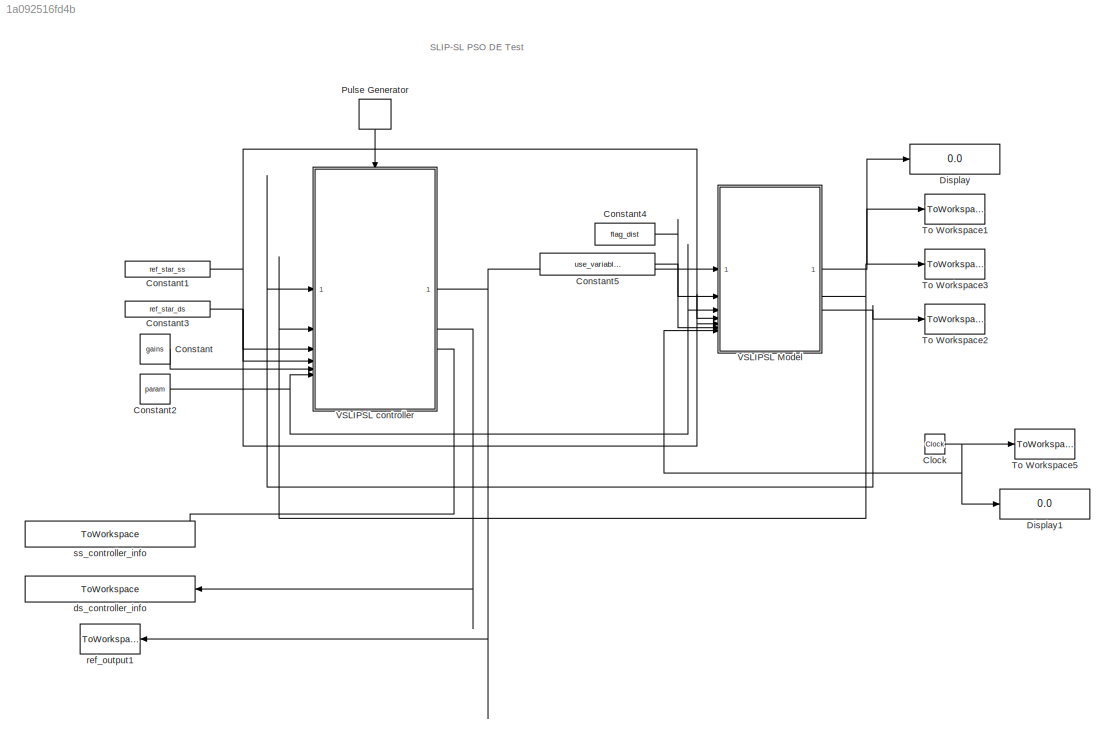
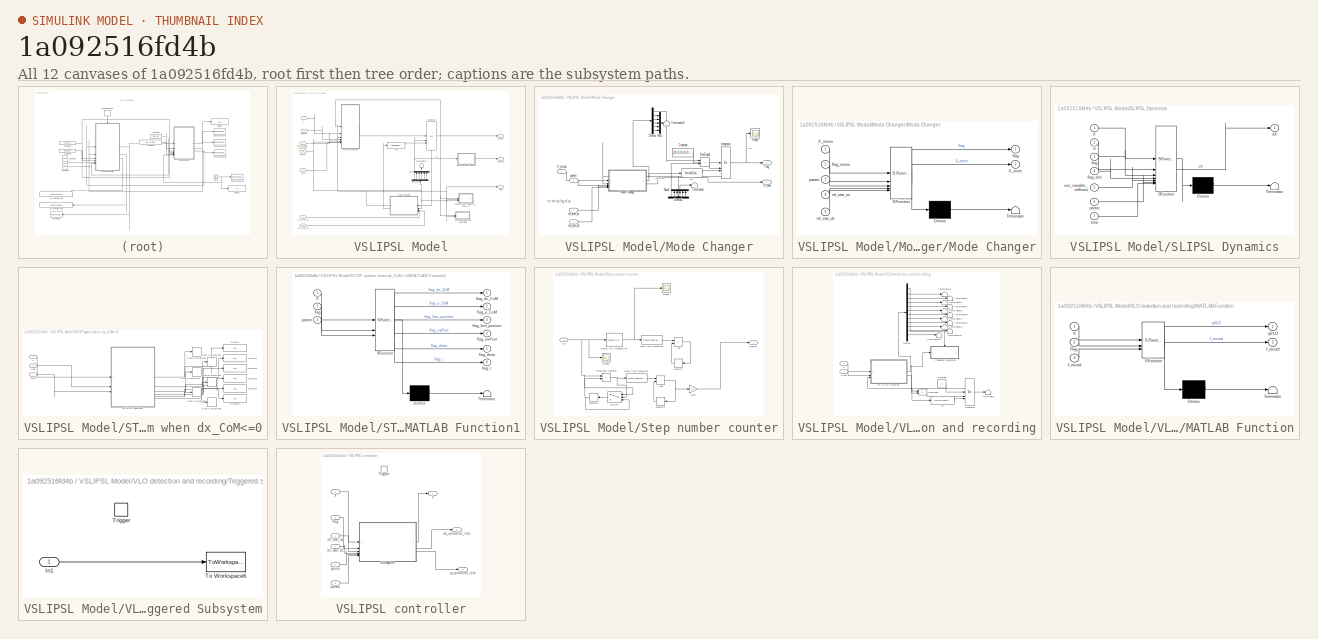
[diagram: thumbnail index - all 12 canvases of the model, root first then tree order]
MODEL slx_1a092516fd4b
KIND model
CONFIG AbsTol = auto
CONFIG EnableMultiTasking = off
CONFIG FixedStep = 1e-3
CONFIG MaxStep = auto
CONFIG MinStep = auto
CONFIG RelTol = 1e-3
CONFIG SampleTimeConstraint = Unconstrained
CONFIG SolverName = ode4
CONFIG StartTime = 0.0
CONFIG StopTime = Tf
BLOCK [Clock] Clock
BLOCK [Constant] Constant
  Value = gains
BLOCK [Constant] Constant1
  Value = ref_star_ss
BLOCK [Constant] Constant2
  Value = param
BLOCK [Constant] Constant3
  Value = ref_star_ds
BLOCK [Constant] Constant4
  Value = flag_dist
BLOCK [Constant] Constant5
  Value = use_variable_stiffness
BLOCK [Display] Display
  Decimation = 1
BLOCK [Display] Display1
  Decimation = 1
BLOCK [DiscretePulseGenerator] Pulse Generator
  NameLocation = left
  Period = 1e-3
  PulseType = Time based
  PulseWidth = 5
BLOCK [ToWorkspace] To Workspace1
  FixptAsFi = on
  MaxDataPoints = inf
  SampleTime = sample_time
  VariableName = step_no
BLOCK [ToWorkspace] To Workspace2
  FixptAsFi = on
  MaxDataPoints = inf
  SampleTime = sample_time
  VariableName = simout
BLOCK [ToWorkspace] To Workspace3
  FixptAsFi = on
  MaxDataPoints = inf
  SampleTime = sample_time
  VariableName = flag
BLOCK [ToWorkspace] To Workspace5
  FixptAsFi = on
  MaxDataPoints = inf
  SampleTime = sample_time
  VariableName = time
BLOCK [SubSystem] VSLIPSL Model
BLOCK [Demux] VSLIPSL Model/Demux1
  NameLocation = right
  Outputs = 6
BLOCK [InitialCondition] VSLIPSL Model/IC1
  Value = init_cond
BLOCK [Integrator] VSLIPSL Model/Integrator
  ExternalReset = either
  InitialConditionSource = external
  NameLocation = top
  ShowStatePort = on
BLOCK [SubSystem] VSLIPSL Model/Mode Changer
  NameLocation = top
BLOCK [Constant] VSLIPSL Model/Mode Changer/Constant
  Value = [0;0;0;0;0;0]
BLOCK [Demux] VSLIPSL Model/Mode Changer/Demux
  Outputs = 6
BLOCK [Demux] VSLIPSL Model/Mode Changer/Demux1
  NameLocation = right
  Outputs = 6
BLOCK [InitialCondition] VSLIPSL Model/Mode Changer/IC
  Value = init_flag
BLOCK [Integrator] VSLIPSL Model/Mode Changer/Integrator
  ExternalReset = rising
  InitialConditionSource = external
  NameLocation = top
  ShowStatePort = on
BLOCK [SubSystem] VSLIPSL Model/Mode Changer/Mode Changer
  ErrorFcn = Stateflow.Translate.translate
  PermitHierarchicalResolution = ExplicitOnly
  SFBlockType = MATLAB Function
  TreatAsAtomicUnit = on
BLOCK [Demux] VSLIPSL Model/Mode Changer/Mode Changer/ Demux 
  Outputs = 1
BLOCK [S-Function] VSLIPSL Model/Mode Changer/Mode Changer/ SFunction 
  EnableBusSupport = on
  FunctionName = sf_sfun
  PortCounts = [5 3]
  SFcnIsStateOwnerBlock = off
  SFunctionDeploymentMode = off
  Tag = Stateflow S-Function 2
BLOCK [Terminator] VSLIPSL Model/Mode Changer/Mode Changer/ Terminator 
BLOCK [Inport] VSLIPSL Model/Mode Changer/Mode Changer/X_minus
BLOCK [Outport] VSLIPSL Model/Mode Changer/Mode Changer/X_reset
  Port = 2
  VectorParamsAs1DForOutWhenUnconnected = off
BLOCK [Outport] VSLIPSL Model/Mode Changer/Mode Changer/flag
  VectorParamsAs1DForOutWhenUnconnected = off
BLOCK [Inport] VSLIPSL Model/Mode Changer/Mode Changer/flag_minus
  Port = 2
BLOCK [Inport] VSLIPSL Model/Mode Changer/Mode Changer/param
  Port = 3
BLOCK [Inport] VSLIPSL Model/Mode Changer/Mode Changer/ref_star_ds
  Port = 5
BLOCK [Inport] VSLIPSL Model/Mode Changer/Mode Changer/ref_star_ss
  Port = 4
BLOCK [Mux] VSLIPSL Model/Mode Changer/Mux
  DisplayOption = bar
  Inputs = 5
BLOCK [Mux] VSLIPSL Model/Mode Changer/Mux1
  DisplayOption = bar
  Inputs = 5
  NameLocation = right
BLOCK [RelationalOperator] VSLIPSL Model/Mode Changer/NotEqual
  InputSameDT = off
  Operator = ~=
  OutDataTypeStr = boolean
  RndMeth = Simplest
BLOCK [Scope] VSLIPSL Model/Mode Changer/Scope
  Floating = off
  NumInputPorts = 1
  ScopeSpecificationString = Simulink.scopes.TimeScopeBlockCfg('CurrentConfiguration', extmgr.ConfigurationSet(extmgr.Configuration('Core','General UI',true),extmgr.Configuration('Core','Source UI',true),extmgr.Configuration('Sources','WiredSimulink',true,'DataLoggingVariableName','ScopeData1'),extmgr.Configuration('Visuals','Time Domain',true,'SerializedDisplays',{struct('MinYLimReal','-1.25','MaxYLimReal','1.25','YLabelReal...<+1419ch>
BLOCK [Terminator] VSLIPSL Model/Mode Changer/Terminator
BLOCK [Terminator] VSLIPSL Model/Mode Changer/Terminator2
BLOCK [Inport] VSLIPSL Model/Mode Changer/X_minus
BLOCK [Outport] VSLIPSL Model/Mode Changer/X_reset
  Port = 2
  VectorParamsAs1DForOutWhenUnconnected = off
BLOCK [Outport] VSLIPSL Model/Mode Changer/flag
  VectorParamsAs1DForOutWhenUnconnected = off
BLOCK [Inport] VSLIPSL Model/Mode Changer/param 
  Port = 2
BLOCK [Inport] VSLIPSL Model/Mode Changer/ref_star_ds
  Port = 4
BLOCK [Inport] VSLIPSL Model/Mode Changer/ref_star_ss
  Port = 3
BLOCK [Mux] VSLIPSL Model/Mux
  DisplayOption = bar
  Inputs = 5
  NameLocation = right
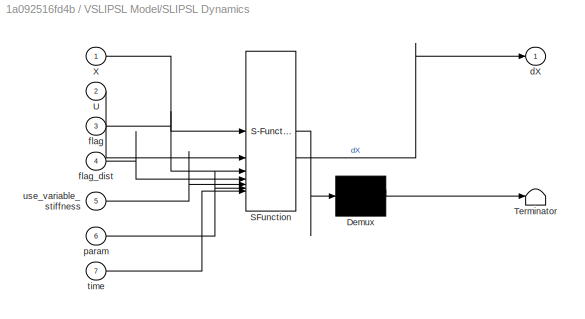
BLOCK [SubSystem] VSLIPSL Model/SLIPSL Dynamics
  ErrorFcn = Stateflow.Translate.translate
  PermitHierarchicalResolution = ExplicitOnly
  SFBlockType = MATLAB Function
  TreatAsAtomicUnit = on
BLOCK [Demux] VSLIPSL Model/SLIPSL Dynamics/ Demux 
  Outputs = 1
BLOCK [S-Function] VSLIPSL Model/SLIPSL Dynamics/ SFunction 
  EnableBusSupport = on
  FunctionName = sf_sfun
  PortCounts = [7 2]
  SFcnIsStateOwnerBlock = off
  SFunctionDeploymentMode = off
  Tag = Stateflow S-Function 7
BLOCK [Terminator] VSLIPSL Model/SLIPSL Dynamics/ Terminator 
BLOCK [Inport] VSLIPSL Model/SLIPSL Dynamics/U
  Port = 2
BLOCK [Inport] VSLIPSL Model/SLIPSL Dynamics/X
BLOCK [Outport] VSLIPSL Model/SLIPSL Dynamics/dX
  VectorParamsAs1DForOutWhenUnconnected = off
BLOCK [Inport] VSLIPSL Model/SLIPSL Dynamics/flag
  Port = 3
BLOCK [Inport] VSLIPSL Model/SLIPSL Dynamics/flag_dist
  Port = 4
BLOCK [Inport] VSLIPSL Model/SLIPSL Dynamics/param
  Port = 6
BLOCK [Inport] VSLIPSL Model/SLIPSL Dynamics/time
  Port = 7
BLOCK [Inport] VSLIPSL Model/SLIPSL Dynamics/use_variable_stiffness
  Port = 5
BLOCK [SubSystem] VSLIPSL Model/STOP system when dx_CoM<=0
BLOCK [Display] VSLIPSL Model/STOP system when dx_CoM<=0/Display
  Decimation = 1
BLOCK [Display] VSLIPSL Model/STOP system when dx_CoM<=0/Display1
  Decimation = 1
BLOCK [Display] VSLIPSL Model/STOP system when dx_CoM<=0/Display2
  Decimation = 1
BLOCK [Display] VSLIPSL Model/STOP system when dx_CoM<=0/Display3
  Decimation = 1
BLOCK [Display] VSLIPSL Model/STOP system when dx_CoM<=0/Display4
  Decimation = 1
BLOCK [Display] VSLIPSL Model/STOP system when dx_CoM<=0/Display5
  Decimation = 1
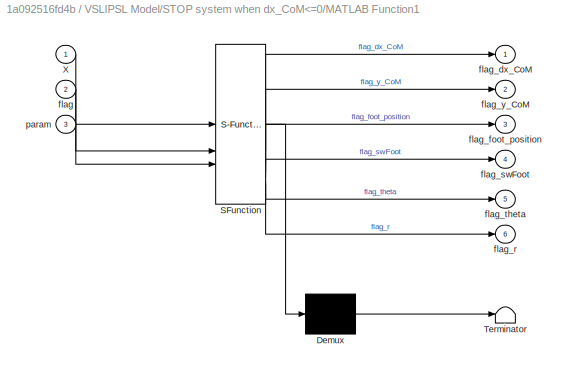
BLOCK [SubSystem] VSLIPSL Model/STOP system when dx_CoM<=0/MATLAB Function1
  ErrorFcn = Stateflow.Translate.translate
  PermitHierarchicalResolution = ExplicitOnly
  SFBlockType = MATLAB Function
  TreatAsAtomicUnit = on
BLOCK [Demux] VSLIPSL Model/STOP system when dx_CoM<=0/MATLAB Function1/ Demux 
  Outputs = 1
BLOCK [S-Function] VSLIPSL Model/STOP system when dx_CoM<=0/MATLAB Function1/ SFunction 
  EnableBusSupport = on
  FunctionName = sf_sfun
  PortCounts = [3 7]
  SFcnIsStateOwnerBlock = off
  SFunctionDeploymentMode = off
  Tag = Stateflow S-Function 8
BLOCK [Terminator] VSLIPSL Model/STOP system when dx_CoM<=0/MATLAB Function1/ Terminator 
BLOCK [Inport] VSLIPSL Model/STOP system when dx_CoM<=0/MATLAB Function1/X
BLOCK [Inport] VSLIPSL Model/STOP system when dx_CoM<=0/MATLAB Function1/flag
  Port = 2
BLOCK [Outport] VSLIPSL Model/STOP system when dx_CoM<=0/MATLAB Function1/flag_dx_CoM
BLOCK [Outport] VSLIPSL Model/STOP system when dx_CoM<=0/MATLAB Function1/flag_foot_position
  Port = 3
BLOCK [Outport] VSLIPSL Model/STOP system when dx_CoM<=0/MATLAB Function1/flag_r
  Port = 6
BLOCK [Outport] VSLIPSL Model/STOP system when dx_CoM<=0/MATLAB Function1/flag_swFoot
  Port = 4
BLOCK [Outport] VSLIPSL Model/STOP system when dx_CoM<=0/MATLAB Function1/flag_theta
  Port = 5
BLOCK [Outport] VSLIPSL Model/STOP system when dx_CoM<=0/MATLAB Function1/flag_y_CoM
  Port = 2
BLOCK [Inport] VSLIPSL Model/STOP system when dx_CoM<=0/MATLAB Function1/param
  Port = 3
BLOCK [Stop] VSLIPSL Model/STOP system when dx_CoM<=0/Stop Simulation1
BLOCK [Stop] VSLIPSL Model/STOP system when dx_CoM<=0/Stop Simulation2
BLOCK [Stop] VSLIPSL Model/STOP system when dx_CoM<=0/Stop Simulation3
BLOCK [Stop] VSLIPSL Model/STOP system when dx_CoM<=0/Stop Simulation4
BLOCK [Stop] VSLIPSL Model/STOP system when dx_CoM<=0/Stop Simulation5
BLOCK [Stop] VSLIPSL Model/STOP system when dx_CoM<=0/Stop Simulation6
BLOCK [Inport] VSLIPSL Model/STOP system when dx_CoM<=0/X
BLOCK [Inport] VSLIPSL Model/STOP system when dx_CoM<=0/flag
  Port = 2
BLOCK [Inport] VSLIPSL Model/STOP system when dx_CoM<=0/param
  Port = 3
BLOCK [SubSystem] VSLIPSL Model/Step number counter
BLOCK [Sum] VSLIPSL Model/Step number counter/Add
  IconShape = rectangular
BLOCK [Sum] VSLIPSL Model/Step number counter/Add1
  IconShape = rectangular
BLOCK [DataTypeConversion] VSLIPSL Model/Step number counter/Data Type Conversion
  OutDataTypeStr = double
  RndMeth = Floor
  SaturateOnIntegerOverflow = off
BLOCK [DataTypeConversion] VSLIPSL Model/Step number counter/Data Type Conversion1
  OutDataTypeStr = double
  RndMeth = Floor
  SaturateOnIntegerOverflow = off
BLOCK [Reference] VSLIPSL Model/Step number counter/Detect Fall Nonpositive  REF=simulink/Logic and Bit
Operations/Detect Fall
Nonpositive
  SourceBlock = simulink/Logic and Bit\nOperations/Detect Fall\nNonpositive
  SourceType = Detect Fall Nonpositive
BLOCK [Gain] VSLIPSL Model/Step number counter/Gain
  Gain = 1/2
BLOCK [Memory] VSLIPSL Model/Step number counter/Memory
  InheritSampleTime = on
  NameLocation = top
BLOCK [Memory] VSLIPSL Model/Step number counter/Memory1
  InheritSampleTime = on
  InitialCondition = 1
  NameLocation = top
BLOCK [Memory] VSLIPSL Model/Step number counter/Memory2
  InheritSampleTime = on
  NameLocation = top
BLOCK [RelationalOperator] VSLIPSL Model/Step number counter/Relational Operator
  InputSameDT = off
  Operator = ~=
  OutDataTypeStr = boolean
  RndMeth = Simplest
BLOCK [Scope] VSLIPSL Model/Step number counter/Scope
  Floating = off
  NumInputPorts = 1
  ScopeSpecificationString = Simulink.scopes.TimeScopeBlockCfg('CurrentConfiguration', extmgr.ConfigurationSet(extmgr.Configuration('Core','General UI',true),extmgr.Configuration('Core','Source UI',true),extmgr.Configuration('Sources','WiredSimulink',true),extmgr.Configuration('Visuals','Time Domain',true,'SerializedDisplays',{struct('MinYLimReal','-0.125','MaxYLimReal','1.125','YLabelReal','','MinYLimMag','0.00000','MaxYLimM...<+1404ch>
BLOCK [Scope] VSLIPSL Model/Step number counter/Scope1
  Floating = off
  NumInputPorts = 1
  ScopeSpecificationString = Simulink.scopes.TimeScopeBlockCfg('CurrentConfiguration', extmgr.ConfigurationSet(extmgr.Configuration('Core','General UI',true),extmgr.Configuration('Core','Source UI',true),extmgr.Configuration('Sources','WiredSimulink',true,'DataLoggingVariableName','ScopeData1'),extmgr.Configuration('Visuals','Time Domain',true,'SerializedDisplays',{struct('MinYLimReal','-1.25','MaxYLimReal','1.25','YLabelReal...<+1416ch>
BLOCK [Switch] VSLIPSL Model/Step number counter/Switch
  Criteria = u2 > Threshold
  InputSameDT = off
  NameLocation = top
  SaturateOnIntegerOverflow = off
BLOCK [Inport] VSLIPSL Model/Step number counter/flg
  SampleTime = sample_time
BLOCK [Outport] VSLIPSL Model/Step number counter/step_no
  VectorParamsAs1DForOutWhenUnconnected = off
BLOCK [Terminator] VSLIPSL Model/Terminator4
  NameLocation = right
BLOCK [Inport] VSLIPSL Model/U
BLOCK [SubSystem] VSLIPSL Model/VLO detection and recording
BLOCK [Constant] VSLIPSL Model/VLO detection and recording/Constant
  Value = 0
BLOCK [Demux] VSLIPSL Model/VLO detection and recording/Demux
  Outputs = 12
BLOCK [Inport] VSLIPSL Model/VLO detection and recording/Flag
  Port = 2
BLOCK [InitialCondition] VSLIPSL Model/VLO detection and recording/IC
  Value = init_f_record
BLOCK [Integrator] VSLIPSL Model/VLO detection and recording/Integrator
  ExternalReset = rising
  InitialConditionSource = external
  NameLocation = top
  ShowStatePort = on
BLOCK [SubSystem] VSLIPSL Model/VLO detection and recording/MATLAB Function
  ErrorFcn = Stateflow.Translate.translate
  PermitHierarchicalResolution = ExplicitOnly
  SFBlockType = MATLAB Function
  TreatAsAtomicUnit = on
BLOCK [Demux] VSLIPSL Model/VLO detection and recording/MATLAB Function/ Demux 
  Outputs = 1
BLOCK [S-Function] VSLIPSL Model/VLO detection and recording/MATLAB Function/ SFunction 
  EnableBusSupport = on
  FunctionName = sf_sfun
  PortCounts = [3 3]
  SFcnIsStateOwnerBlock = off
  SFunctionDeploymentMode = off
  Tag = Stateflow S-Function 9
BLOCK [Terminator] VSLIPSL Model/VLO detection and recording/MATLAB Function/ Terminator 
BLOCK [Inport] VSLIPSL Model/VLO detection and recording/MATLAB Function/Flag
  Port = 2
BLOCK [Inport] VSLIPSL Model/VLO detection and recording/MATLAB Function/X
BLOCK [Outport] VSLIPSL Model/VLO detection and recording/MATLAB Function/f_record
  Port = 2
  VectorParamsAs1DForOutWhenUnconnected = off
BLOCK [Inport] VSLIPSL Model/VLO detection and recording/MATLAB Function/f_record 
  Port = 3
BLOCK [Outport] VSLIPSL Model/VLO detection and recording/MATLAB Function/qVLO
  VectorParamsAs1DForOutWhenUnconnected = off
BLOCK [RelationalOperator] VSLIPSL Model/VLO detection and recording/NotEqual
  InputSameDT = off
  Operator = ~=
  OutDataTypeStr = boolean
  RndMeth = Simplest
BLOCK [Terminator] VSLIPSL Model/VLO detection and recording/Terminator
BLOCK [Terminator] VSLIPSL Model/VLO detection and recording/Terminator1
BLOCK [Terminator] VSLIPSL Model/VLO detection and recording/Terminator10
BLOCK [Terminator] VSLIPSL Model/VLO detection and recording/Terminator11
BLOCK [Terminator] VSLIPSL Model/VLO detection and recording/Terminator2
BLOCK [Terminator] VSLIPSL Model/VLO detection and recording/Terminator3
BLOCK [Terminator] VSLIPSL Model/VLO detection and recording/Terminator4
BLOCK [Terminator] VSLIPSL Model/VLO detection and recording/Terminator5
BLOCK [Terminator] VSLIPSL Model/VLO detection and recording/Terminator6
BLOCK [Terminator] VSLIPSL Model/VLO detection and recording/Terminator7
BLOCK [Terminator] VSLIPSL Model/VLO detection and recording/Terminator8
BLOCK [Terminator] VSLIPSL Model/VLO detection and recording/Terminator9
BLOCK [SubSystem] VSLIPSL Model/VLO detection and recording/Triggered Subsystem
  TreatAsAtomicUnit = on
BLOCK [Inport] VSLIPSL Model/VLO detection and recording/Triggered Subsystem/In1
BLOCK [ToWorkspace] VSLIPSL Model/VLO detection and recording/Triggered Subsystem/To Workspace6
  FixptAsFi = on
  MaxDataPoints = inf
  SampleTime = -1
  VariableName = qVLO
BLOCK [TriggerPort] VSLIPSL Model/VLO detection and recording/Triggered Subsystem/Trigger
  StatesWhenEnabling = held
  VariantControl = Variant
BLOCK [Inport] VSLIPSL Model/VLO detection and recording/X
BLOCK [Outport] VSLIPSL Model/flag
  Port = 2
BLOCK [Inport] VSLIPSL Model/flag_dist
  Port = 2
BLOCK [Inport] VSLIPSL Model/param
  Port = 3
BLOCK [Inport] VSLIPSL Model/ref_star_ds
  Port = 5
BLOCK [Inport] VSLIPSL Model/ref_star_ss
  Port = 4
BLOCK [Outport] VSLIPSL Model/simout
  Port = 3
BLOCK [Outport] VSLIPSL Model/step_no
BLOCK [Inport] VSLIPSL Model/time
  Port = 7
BLOCK [Inport] VSLIPSL Model/use_variable_stiffness
  Port = 6
BLOCK [SubSystem] VSLIPSL controller
  TreatAsAtomicUnit = on
BLOCK [SubSystem] VSLIPSL controller/Subsystem
  ReferencedSubsystem = VSLIPSL_controller_subsystem
BLOCK [TriggerPort] VSLIPSL controller/Trigger
  StatesWhenEnabling = held
  VariantControl = Variant
BLOCK [Outport] VSLIPSL controller/U
BLOCK [Inport] VSLIPSL controller/X
BLOCK [Outport] VSLIPSL controller/ds_controller_info
  Port = 2
BLOCK [Inport] VSLIPSL controller/flag
  Port = 2
BLOCK [Inport] VSLIPSL controller/gains
  Port = 5
BLOCK [Inport] VSLIPSL controller/param
  Port = 6
BLOCK [Inport] VSLIPSL controller/ref_star_ds
  Port = 4
BLOCK [Inport] VSLIPSL controller/ref_star_ss
  Port = 3
BLOCK [Outport] VSLIPSL controller/ss_controller_info
  Port = 3
BLOCK [ToWorkspace] ds_controller_info
  FixptAsFi = on
  MaxDataPoints = inf
  NameLocation = top
  SampleTime = sample_time
  SaveFormat = Timeseries
  VariableName = ds_controller_info
BLOCK [ToWorkspace] ref_output1
  FixptAsFi = on
  MaxDataPoints = inf
  NameLocation = top
  SampleTime = sample_time
  VariableName = inputs
BLOCK [ToWorkspace] ss_controller_info
  FixptAsFi = on
  MaxDataPoints = inf
  NameLocation = top
  SampleTime = sample_time
  SaveFormat = Timeseries
  VariableName = ss_controller_info
ANNOTATION (root): SLIP-SL PSO DE Test
ANNOTATION VSLIPSL Model/Mode Changer: for setting flag_ref_ob
NET Clock:1 -> Display1:1, To Workspace5:1, VSLIPSL Model:7
NET Constant1:1 -> VSLIPSL Model:4, VSLIPSL controller:3
NET Constant2:1 -> VSLIPSL Model:3, VSLIPSL controller:6
NET Constant3:1 -> VSLIPSL Model:5, VSLIPSL controller:4
LINE Constant4:1 -> VSLIPSL Model:2
LINE Constant5:1 -> VSLIPSL Model:6
LINE Constant:1 -> VSLIPSL controller:5
LINE Pulse Generator:1 -> VSLIPSL controller:trigger
NET VSLIPSL Model/Demux1:1 -> VSLIPSL Model/Integrator:2, VSLIPSL Model/Step number counter:1
LINE VSLIPSL Model/Demux1:2 -> VSLIPSL Model/Mux:1
LINE VSLIPSL Model/Demux1:3 -> VSLIPSL Model/Mux:2
LINE VSLIPSL Model/Demux1:4 -> VSLIPSL Model/Mux:3
LINE VSLIPSL Model/Demux1:5 -> VSLIPSL Model/Mux:4
LINE VSLIPSL Model/Demux1:6 -> VSLIPSL Model/Mux:5
LINE VSLIPSL Model/IC1:1 -> VSLIPSL Model/Integrator:3
NET VSLIPSL Model/Integrator:1 -> VSLIPSL Model/SLIPSL Dynamics:1, VSLIPSL Model/STOP system when dx_CoM<=0:1, VSLIPSL Model/VLO detection and recording:1, VSLIPSL Model/simout:1
LINE VSLIPSL Model/Integrator:state -> VSLIPSL Model/Mode Changer:1
LINE VSLIPSL Model/Mode Changer/Constant:1 -> VSLIPSL Model/Mode Changer/Integrator:1
LINE VSLIPSL Model/Mode Changer/Demux1:1 -> VSLIPSL Model/Mode Changer/NotEqual:2
LINE VSLIPSL Model/Mode Changer/Demux1:2 -> VSLIPSL Model/Mode Changer/Mux1:1
LINE VSLIPSL Model/Mode Changer/Demux1:3 -> VSLIPSL Model/Mode Changer/Mux1:2
LINE VSLIPSL Model/Mode Changer/Demux1:4 -> VSLIPSL Model/Mode Changer/Mux1:3
LINE VSLIPSL Model/Mode Changer/Demux1:5 -> VSLIPSL Model/Mode Changer/Mux1:4
LINE VSLIPSL Model/Mode Changer/Demux1:6 -> VSLIPSL Model/Mode Changer/Mux1:5
LINE VSLIPSL Model/Mode Changer/Demux:1 -> VSLIPSL Model/Mode Changer/NotEqual:1
LINE VSLIPSL Model/Mode Changer/Demux:2 -> VSLIPSL Model/Mode Changer/Mux:1
LINE VSLIPSL Model/Mode Changer/Demux:3 -> VSLIPSL Model/Mode Changer/Mux:2
LINE VSLIPSL Model/Mode Changer/Demux:4 -> VSLIPSL Model/Mode Changer/Mux:3
LINE VSLIPSL Model/Mode Changer/Demux:5 -> VSLIPSL Model/Mode Changer/Mux:4
LINE VSLIPSL Model/Mode Changer/Demux:6 -> VSLIPSL Model/Mode Changer/Mux:5
LINE VSLIPSL Model/Mode Changer/IC:1 -> VSLIPSL Model/Mode Changer/Integrator:3
NET VSLIPSL Model/Mode Changer/Integrator:1 -> VSLIPSL Model/Mode Changer/Scope:1, VSLIPSL Model/Mode Changer/flag:1
NET VSLIPSL Model/Mode Changer/Integrator:state -> VSLIPSL Model/Mode Changer/Demux1:1, VSLIPSL Model/Mode Changer/Mode Changer:2
NET VSLIPSL Model/Mode Changer/Mode Changer:1 -> VSLIPSL Model/Mode Changer/Demux:1, VSLIPSL Model/Mode Changer/IC:1
LINE VSLIPSL Model/Mode Changer/Mode Changer:2 -> VSLIPSL Model/Mode Changer/X_reset:1
LINE VSLIPSL Model/Mode Changer/Mux1:1 -> VSLIPSL Model/Mode Changer/Terminator:1
LINE VSLIPSL Model/Mode Changer/Mux:1 -> VSLIPSL Model/Mode Changer/Terminator2:1
LINE VSLIPSL Model/Mode Changer/NotEqual:1 -> VSLIPSL Model/Mode Changer/Integrator:2
LINE VSLIPSL Model/Mode Changer/X_minus:1 -> VSLIPSL Model/Mode Changer/Mode Changer:1
LINE VSLIPSL Model/Mode Changer/param :1 -> VSLIPSL Model/Mode Changer/Mode Changer:3
LINE VSLIPSL Model/Mode Changer/ref_star_ds:1 -> VSLIPSL Model/Mode Changer/Mode Changer:5
LINE VSLIPSL Model/Mode Changer/ref_star_ss:1 -> VSLIPSL Model/Mode Changer/Mode Changer:4
NET VSLIPSL Model/Mode Changer:1 -> VSLIPSL Model/Demux1:1, VSLIPSL Model/SLIPSL Dynamics:3, VSLIPSL Model/STOP system when dx_CoM<=0:2, VSLIPSL Model/VLO detection and recording:2, VSLIPSL Model/flag:1
LINE VSLIPSL Model/Mode Changer:2 -> VSLIPSL Model/IC1:1
LINE VSLIPSL Model/Mux:1 -> VSLIPSL Model/Terminator4:1
LINE VSLIPSL Model/SLIPSL Dynamics:1 -> VSLIPSL Model/Integrator:1
NET VSLIPSL Model/STOP system when dx_CoM<=0/MATLAB Function1:1 -> VSLIPSL Model/STOP system when dx_CoM<=0/Display:1, VSLIPSL Model/STOP system when dx_CoM<=0/Stop Simulation1:1
NET VSLIPSL Model/STOP system when dx_CoM<=0/MATLAB Function1:2 -> VSLIPSL Model/STOP system when dx_CoM<=0/Display1:1, VSLIPSL Model/STOP system when dx_CoM<=0/Stop Simulation2:1
NET VSLIPSL Model/STOP system when dx_CoM<=0/MATLAB Function1:3 -> VSLIPSL Model/STOP system when dx_CoM<=0/Display2:1, VSLIPSL Model/STOP system when dx_CoM<=0/Stop Simulation4:1
NET VSLIPSL Model/STOP system when dx_CoM<=0/MATLAB Function1:4 -> VSLIPSL Model/STOP system when dx_CoM<=0/Display3:1, VSLIPSL Model/STOP system when dx_CoM<=0/Stop Simulation3:1
NET VSLIPSL Model/STOP system when dx_CoM<=0/MATLAB Function1:5 -> VSLIPSL Model/STOP system when dx_CoM<=0/Display4:1, VSLIPSL Model/STOP system when dx_CoM<=0/Stop Simulation5:1
NET VSLIPSL Model/STOP system when dx_CoM<=0/MATLAB Function1:6 -> VSLIPSL Model/STOP system when dx_CoM<=0/Display5:1, VSLIPSL Model/STOP system when dx_CoM<=0/Stop Simulation6:1
LINE VSLIPSL Model/STOP system when dx_CoM<=0/X:1 -> VSLIPSL Model/STOP system when dx_CoM<=0/MATLAB Function1:1
LINE VSLIPSL Model/STOP system when dx_CoM<=0/flag:1 -> VSLIPSL Model/STOP system when dx_CoM<=0/MATLAB Function1:2
LINE VSLIPSL Model/STOP system when dx_CoM<=0/param:1 -> VSLIPSL Model/STOP system when dx_CoM<=0/MATLAB Function1:3
NET VSLIPSL Model/Step number counter/Add1:1 -> VSLIPSL Model/Step number counter/Gain:1, VSLIPSL Model/Step number counter/Memory2:1
LINE VSLIPSL Model/Step number counter/Add:1 -> VSLIPSL Model/Step number counter/Memory:1
LINE VSLIPSL Model/Step number counter/Data Type Conversion1:1 -> VSLIPSL Model/Step number counter/Add1:1
LINE VSLIPSL Model/Step number counter/Data Type Conversion:1 -> VSLIPSL Model/Step number counter/Add:1
NET VSLIPSL Model/Step number counter/Detect Fall Nonpositive:1 -> VSLIPSL Model/Step number counter/Data Type Conversion:1, VSLIPSL Model/Step number counter/Scope:1
LINE VSLIPSL Model/Step number counter/Gain:1 -> VSLIPSL Model/Step number counter/step_no:1
NET VSLIPSL Model/Step number counter/Memory1:1 -> VSLIPSL Model/Step number counter/Relational Operator:2, VSLIPSL Model/Step number counter/Switch:3
LINE VSLIPSL Model/Step number counter/Memory2:1 -> VSLIPSL Model/Step number counter/Add1:2
LINE VSLIPSL Model/Step number counter/Memory:1 -> VSLIPSL Model/Step number counter/Add:2
NET VSLIPSL Model/Step number counter/Relational Operator:1 -> VSLIPSL Model/Step number counter/Data Type Conversion1:1, VSLIPSL Model/Step number counter/Switch:2
LINE VSLIPSL Model/Step number counter/Switch:1 -> VSLIPSL Model/Step number counter/Memory1:1
NET VSLIPSL Model/Step number counter/flg:1 -> VSLIPSL Model/Step number counter/Detect Fall Nonpositive:1, VSLIPSL Model/Step number counter/Relational Operator:1, VSLIPSL Model/Step number counter/Scope1:1, VSLIPSL Model/Step number counter/Switch:1
LINE VSLIPSL Model/Step number counter:1 -> VSLIPSL Model/step_no:1
LINE VSLIPSL Model/U:1 -> VSLIPSL Model/SLIPSL Dynamics:2
LINE VSLIPSL Model/VLO detection and recording/Constant:1 -> VSLIPSL Model/VLO detection and recording/Integrator:1
LINE VSLIPSL Model/VLO detection and recording/Demux:1 -> VSLIPSL Model/VLO detection and recording/Triggered Subsystem:trigger
LINE VSLIPSL Model/VLO detection and recording/Demux:10 -> VSLIPSL Model/VLO detection and recording/Terminator9:1
LINE VSLIPSL Model/VLO detection and recording/Demux:11 -> VSLIPSL Model/VLO detection and recording/Terminator10:1
LINE VSLIPSL Model/VLO detection and recording/Demux:12 -> VSLIPSL Model/VLO detection and recording/Terminator11:1
LINE VSLIPSL Model/VLO detection and recording/Demux:2 -> VSLIPSL Model/VLO detection and recording/Terminator3:1
LINE VSLIPSL Model/VLO detection and recording/Demux:3 -> VSLIPSL Model/VLO detection and recording/Terminator2:1
LINE VSLIPSL Model/VLO detection and recording/Demux:4 -> VSLIPSL Model/VLO detection and recording/Terminator1:1
LINE VSLIPSL Model/VLO detection and recording/Demux:5 -> VSLIPSL Model/VLO detection and recording/Terminator4:1
LINE VSLIPSL Model/VLO detection and recording/Demux:6 -> VSLIPSL Model/VLO detection and recording/Terminator5:1
LINE VSLIPSL Model/VLO detection and recording/Demux:7 -> VSLIPSL Model/VLO detection and recording/Terminator6:1
LINE VSLIPSL Model/VLO detection and recording/Demux:8 -> VSLIPSL Model/VLO detection and recording/Terminator7:1
LINE VSLIPSL Model/VLO detection and recording/Demux:9 -> VSLIPSL Model/VLO detection and recording/Terminator8:1
LINE VSLIPSL Model/VLO detection and recording/Flag:1 -> VSLIPSL Model/VLO detection and recording/MATLAB Function:2
LINE VSLIPSL Model/VLO detection and recording/IC:1 -> VSLIPSL Model/VLO detection and recording/Integrator:3
LINE VSLIPSL Model/VLO detection and recording/Integrator:1 -> VSLIPSL Model/VLO detection and recording/Terminator:1
NET VSLIPSL Model/VLO detection and recording/Integrator:state -> VSLIPSL Model/VLO detection and recording/MATLAB Function:3, VSLIPSL Model/VLO detection and recording/NotEqual:2
NET VSLIPSL Model/VLO detection and recording/MATLAB Function:1 -> VSLIPSL Model/VLO detection and recording/Demux:1, VSLIPSL Model/VLO detection and recording/Triggered Subsystem:1
NET VSLIPSL Model/VLO detection and recording/MATLAB Function:2 -> VSLIPSL Model/VLO detection and recording/IC:1, VSLIPSL Model/VLO detection and recording/NotEqual:1
LINE VSLIPSL Model/VLO detection and recording/NotEqual:1 -> VSLIPSL Model/VLO detection and recording/Integrator:2
LINE VSLIPSL Model/VLO detection and recording/Triggered Subsystem/In1:1 -> VSLIPSL Model/VLO detection and recording/Triggered Subsystem/To Workspace6:1
LINE VSLIPSL Model/VLO detection and recording/X:1 -> VSLIPSL Model/VLO detection and recording/MATLAB Function:1
LINE VSLIPSL Model/flag_dist:1 -> VSLIPSL Model/SLIPSL Dynamics:4
NET VSLIPSL Model/param:1 -> VSLIPSL Model/Mode Changer:2, VSLIPSL Model/SLIPSL Dynamics:6, VSLIPSL Model/STOP system when dx_CoM<=0:3
LINE VSLIPSL Model/ref_star_ds:1 -> VSLIPSL Model/Mode Changer:4
LINE VSLIPSL Model/ref_star_ss:1 -> VSLIPSL Model/Mode Changer:3
LINE VSLIPSL Model/time:1 -> VSLIPSL Model/SLIPSL Dynamics:7
LINE VSLIPSL Model/use_variable_stiffness:1 -> VSLIPSL Model/SLIPSL Dynamics:5
NET VSLIPSL Model:1 -> Display:1, To Workspace1:1
NET VSLIPSL Model:2 -> To Workspace3:1, VSLIPSL controller:2
NET VSLIPSL Model:3 -> To Workspace2:1, VSLIPSL controller:1
LINE VSLIPSL controller/Subsystem:1 -> VSLIPSL controller/U:1
LINE VSLIPSL controller/Subsystem:2 -> VSLIPSL controller/ds_controller_info:1
LINE VSLIPSL controller/Subsystem:3 -> VSLIPSL controller/ss_controller_info:1
LINE VSLIPSL controller/X:1 -> VSLIPSL controller/Subsystem:1
LINE VSLIPSL controller/flag:1 -> VSLIPSL controller/Subsystem:2
LINE VSLIPSL controller/gains:1 -> VSLIPSL controller/Subsystem:5
LINE VSLIPSL controller/param:1 -> VSLIPSL controller/Subsystem:6
LINE VSLIPSL controller/ref_star_ds:1 -> VSLIPSL controller/Subsystem:4
LINE VSLIPSL controller/ref_star_ss:1 -> VSLIPSL controller/Subsystem:3
NET VSLIPSL controller:1 -> VSLIPSL Model:1, ref_output1:1
LINE VSLIPSL controller:2 -> ds_controller_info:1
LINE VSLIPSL controller:3 -> ss_controller_info:1
note: NET lines group one-source signal fan-out (src -> all destinations, sorted); 1:1 wires keep LINE
CHART VSLIPSL Model/Mode Changer/Mode Changer states=1 transitions=1
  STATE_LABEL 'eML_blk_kernel()'
  STATE_LABEL 'SCRIPT:\nfunction [flag, X_reset]  = fcn(X_minus, flag_minus, param, ref_star_ss, ref_star_ds)\n\n% parameters\nL0_ss = param(1); % [m]\nk0_ss = param(2); % nominal leg stiffness [N/m]\nm_M = param(3); % hip mass [kg]\nm_swLeg = param(4); % [kg]\nm_swFoot = param(5); % [kg]\nI_swLeg = param(6); %\nI_swFoot = param(7); %\nL_thigh = param(8); % [m]\nk_swFoot = param(9); %\nk_swLeg = param(10); %\ntheta0 = param(1...<+3608ch>'
CHART VSLIPSL Model/SLIPSL Dynamics states=1 transitions=1
  STATE_LABEL 'eML_blk_kernel()'
  STATE_LABEL 'SCRIPT:\nfunction dX  = fcn(X, U, flag, flag_dist, use_variable_stiffness, param, time)\n\n% ----------- parameters ----------------------\nL0_ss = param(1); % [m]\nk0_ss = param(2); % nominal leg stiffness [N/m]\nm_M = param(3); % hip mass [kg]\nm_swLeg = param(4); % [kg]\nm_swFoot = param(5); % [kg]\nI_swLeg = param(6); %\nI_swFoot = param(7); %\nL_thigh = param(8); % [m]\nk_swFoot = param(9); %\nk_swLeg = p...<+3608ch>'
CHART VSLIPSL Model/STOP system when dx_CoM<=0/MATLAB Function1 states=1 transitions=1
  STATE_LABEL 'eML_blk_kernel()'
  STATE_LABEL 'SCRIPT:\nfunction [flag_dx_CoM, flag_y_CoM, flag_foot_position, flag_swFoot, flag_theta, flag_r] = fcn(X, flag, param)\n% this function checks if the simulation is running within the constraints\n% and if not, it sets related flags to 1 in order to stop the simulation\n\n% ----------- parameters ----------------------\nL0_ss = param(1); % [m]\nk0_ss = param(2); % nominal leg stiffness [N/m]\nm_M = param(3...<+2434ch>'
CHART VSLIPSL Model/VLO detection and recording/MATLAB Function states=1 transitions=1
  STATE_LABEL 'eML_blk_kernel()'
  STATE_LABEL 'SCRIPT:\nfunction [qVLO, f_record] = fcn(X, Flag, f_record)\n% function for deciding when VLO occurs and records it\n\n% ----------- states ----------------------\nx_CoM = X(1); % x position of CoM\nz_CoM = X(2); % z position of CoM\ntheta = X(3); % angle of the swing leg when in SS\nr_swFoot = X(4); % distance of the foot from the knee on SS\n\ndx_CoM = X(5); % x velocity of CoM\ndz_CoM = X(6); % z velocity...<+659ch>'
CHART  states=0 transitions=0
CHART  states=0 transitions=0
CHART  states=0 transitions=0
CHART  states=0 transitions=0
